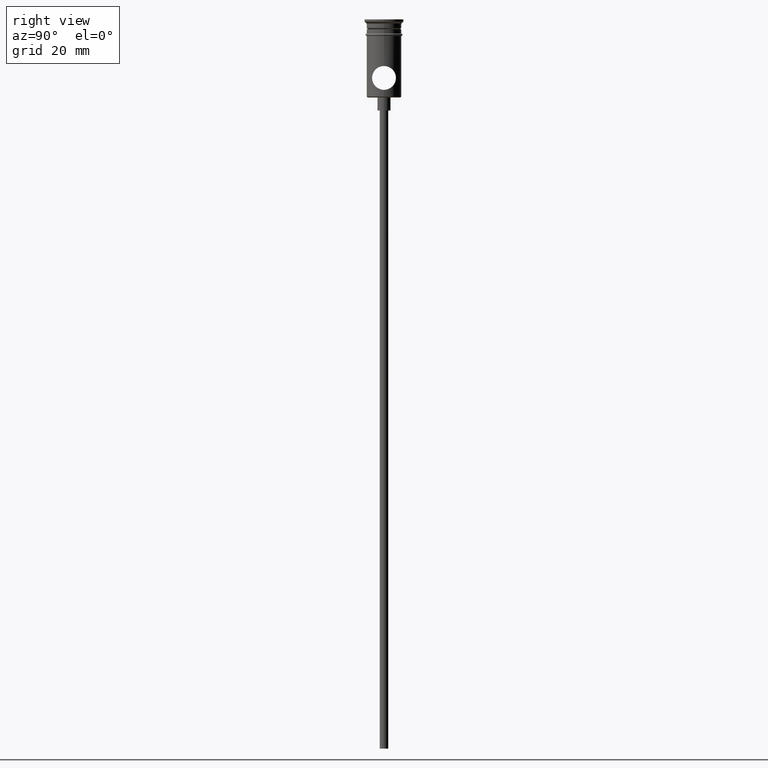
[diagram: clean part render]
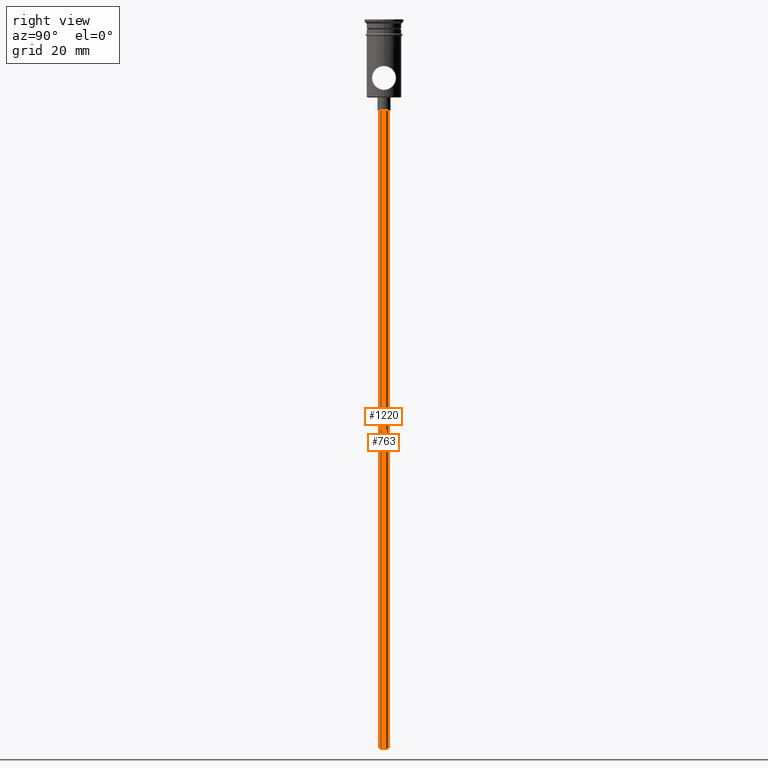
[diagram: same view with one multi-face feature highlighted, each face labeled with its STEP entity id]
A machine part, right view. The highlighted faces form ONE feature: a constant-radius fillet chain: 2 tangent blend faces with common blend radius 1 mm. The faces share edges in the B-rep.
Their STEP definitions:
[1] entity #763 (Cylinder):
#11 = EDGE_CURVE ( 'NONE', #895, #273, #929, .T. ) ;
#19 = LINE ( 'NONE', #1119, #1204 ) ;
#30 = ORIENTED_EDGE ( 'NONE', *, *, #423, .F. ) ;
#73 = CARTESIAN_POINT ( 'NONE',  ( -0.9999999999999997780, 1.224646799147352961E-16, -20.99999999999999645 ) ) ;
#99 = CARTESIAN_POINT ( 'NONE',  ( 0.000000000000000000, 0.000000000000000000, -20.99999999999999645 ) ) ;
#152 = AXIS2_PLACEMENT_3D ( 'NONE', #1319, #1228, #353 ) ;
#178 = VECTOR ( 'NONE', #285, 1000.000000000000000 ) ;
#209 = CARTESIAN_POINT ( 'NONE',  ( 0.9999999999999997780, 0.000000000000000000, -20.99999999999999645 ) ) ;
#216 = DIRECTION ( 'NONE',  ( 0.000000000000000000, 0.000000000000000000, -1.000000000000000000 ) ) ;
#236 = DIRECTION ( 'NONE',  ( -1.000000000000000000, 0.000000000000000000, 0.000000000000000000 ) ) ;
#239 = FACE_OUTER_BOUND ( 'NONE', #861, .T. ) ;
#248 = DIRECTION ( 'NONE',  ( -0.000000000000000000, -0.000000000000000000, 1.000000000000000000 ) ) ;
#255 = VERTEX_POINT ( 'NONE', #209 ) ;
#273 = VERTEX_POINT ( 'NONE', #641 ) ;
#285 = DIRECTION ( 'NONE',  ( -0.000000000000000000, -0.000000000000000000, 1.000000000000000000 ) ) ;
#292 = CARTESIAN_POINT ( 'NONE',  ( -0.9999999999999997780, 1.224646799147352961E-16, -167.9999999999999716 ) ) ;
#353 = DIRECTION ( 'NONE',  ( 1.000000000000000000, 0.000000000000000000, 0.000000000000000000 ) ) ;
#406 = LINE ( 'NONE', #292, #178 ) ;
#423 = EDGE_CURVE ( 'NONE', #273, #255, #19, .T. ) ;
#584 = DIRECTION ( 'NONE',  ( 0.000000000000000000, 0.000000000000000000, -1.000000000000000000 ) ) ;
#641 = CARTESIAN_POINT ( 'NONE',  ( 0.9999999999999997780, 0.000000000000000000, -167.9999999999999716 ) ) ;
#670 = CARTESIAN_POINT ( 'NONE',  ( 0.000000000000000000, 0.000000000000000000, -167.9999999999999716 ) ) ;
#698 = AXIS2_PLACEMENT_3D ( 'NONE', #670, #584, #236 ) ;
#713 = VERTEX_POINT ( 'NONE', #73 ) ;
#721 = ORIENTED_EDGE ( 'NONE', *, *, #1328, .T. ) ;
#743 = CARTESIAN_POINT ( 'NONE',  ( -0.9999999999999997780, 1.224646799147352961E-16, -167.9999999999999716 ) ) ;
#760 = CYLINDRICAL_SURFACE ( 'NONE', #152, 0.9999999999999997780 ) ;
#763 = ADVANCED_FACE ( 'NONE', ( #239 ), #760, .T. ) ;
#861 = EDGE_LOOP ( 'NONE', ( #918, #721, #883, #30 ) ) ;
#883 = ORIENTED_EDGE ( 'NONE', *, *, #1386, .T. ) ;
#895 = VERTEX_POINT ( 'NONE', #743 ) ;
#918 = ORIENTED_EDGE ( 'NONE', *, *, #11, .F. ) ;
#929 = CIRCLE ( 'NONE', #698, 0.9999999999999997780 ) ;
#1119 = CARTESIAN_POINT ( 'NONE',  ( 0.9999999999999997780, 0.000000000000000000, -167.9999999999999716 ) ) ;
#1204 = VECTOR ( 'NONE', #248, 1000.000000000000000 ) ;
#1228 = DIRECTION ( 'NONE',  ( -0.000000000000000000, -0.000000000000000000, 1.000000000000000000 ) ) ;
#1319 = CARTESIAN_POINT ( 'NONE',  ( 0.000000000000000000, 0.000000000000000000, -167.9999999999999716 ) ) ;
#1325 = CIRCLE ( 'NONE', #1417, 0.9999999999999997780 ) ;
#1328 = EDGE_CURVE ( 'NONE', #895, #713, #406, .T. ) ;
#1386 = EDGE_CURVE ( 'NONE', #713, #255, #1325, .T. ) ;
#1404 = DIRECTION ( 'NONE',  ( -1.000000000000000000, 0.000000000000000000, 0.000000000000000000 ) ) ;
#1417 = AXIS2_PLACEMENT_3D ( 'NONE', #99, #216, #1404 ) ;
[2] entity #1220 (Cylinder):
#19 = LINE ( 'NONE', #1119, #1204 ) ;
#73 = CARTESIAN_POINT ( 'NONE',  ( -0.9999999999999997780, 1.224646799147352961E-16, -20.99999999999999645 ) ) ;
#148 = ORIENTED_EDGE ( 'NONE', *, *, #1328, .F. ) ;
#178 = VECTOR ( 'NONE', #285, 1000.000000000000000 ) ;
#209 = CARTESIAN_POINT ( 'NONE',  ( 0.9999999999999997780, 0.000000000000000000, -20.99999999999999645 ) ) ;
#243 = DIRECTION ( 'NONE',  ( -0.000000000000000000, -0.000000000000000000, 1.000000000000000000 ) ) ;
#248 = DIRECTION ( 'NONE',  ( -0.000000000000000000, -0.000000000000000000, 1.000000000000000000 ) ) ;
#255 = VERTEX_POINT ( 'NONE', #209 ) ;
#264 = EDGE_CURVE ( 'NONE', #273, #895, #474, .T. ) ;
#273 = VERTEX_POINT ( 'NONE', #641 ) ;
#285 = DIRECTION ( 'NONE',  ( -0.000000000000000000, -0.000000000000000000, 1.000000000000000000 ) ) ;
#292 = CARTESIAN_POINT ( 'NONE',  ( -0.9999999999999997780, 1.224646799147352961E-16, -167.9999999999999716 ) ) ;
#321 = DIRECTION ( 'NONE',  ( -1.000000000000000000, 0.000000000000000000, 0.000000000000000000 ) ) ;
#357 = CYLINDRICAL_SURFACE ( 'NONE', #1048, 0.9999999999999997780 ) ;
#406 = LINE ( 'NONE', #292, #178 ) ;
#421 = DIRECTION ( 'NONE',  ( 0.000000000000000000, 0.000000000000000000, -1.000000000000000000 ) ) ;
#423 = EDGE_CURVE ( 'NONE', #273, #255, #19, .T. ) ;
#474 = CIRCLE ( 'NONE', #1111, 0.9999999999999997780 ) ;
#479 = CIRCLE ( 'NONE', #658, 0.9999999999999997780 ) ;
#599 = DIRECTION ( 'NONE',  ( 1.000000000000000000, 0.000000000000000000, 0.000000000000000000 ) ) ;
#641 = CARTESIAN_POINT ( 'NONE',  ( 0.9999999999999997780, 0.000000000000000000, -167.9999999999999716 ) ) ;
#658 = AXIS2_PLACEMENT_3D ( 'NONE', #1022, #1014, #1334 ) ;
#713 = VERTEX_POINT ( 'NONE', #73 ) ;
#743 = CARTESIAN_POINT ( 'NONE',  ( -0.9999999999999997780, 1.224646799147352961E-16, -167.9999999999999716 ) ) ;
#895 = VERTEX_POINT ( 'NONE', #743 ) ;
#955 = CARTESIAN_POINT ( 'NONE',  ( 0.000000000000000000, 0.000000000000000000, -167.9999999999999716 ) ) ;
#1014 = DIRECTION ( 'NONE',  ( 0.000000000000000000, 0.000000000000000000, -1.000000000000000000 ) ) ;
#1022 = CARTESIAN_POINT ( 'NONE',  ( 0.000000000000000000, 0.000000000000000000, -20.99999999999999645 ) ) ;
#1048 = AXIS2_PLACEMENT_3D ( 'NONE', #1136, #243, #599 ) ;
#1111 = AXIS2_PLACEMENT_3D ( 'NONE', #955, #421, #321 ) ;
#1119 = CARTESIAN_POINT ( 'NONE',  ( 0.9999999999999997780, 0.000000000000000000, -167.9999999999999716 ) ) ;
#1136 = CARTESIAN_POINT ( 'NONE',  ( 0.000000000000000000, 0.000000000000000000, -167.9999999999999716 ) ) ;
#1196 = ORIENTED_EDGE ( 'NONE', *, *, #423, .T. ) ;
#1204 = VECTOR ( 'NONE', #248, 1000.000000000000000 ) ;
#1220 = ADVANCED_FACE ( 'NONE', ( #1246 ), #357, .T. ) ;
#1246 = FACE_OUTER_BOUND ( 'NONE', #1316, .T. ) ;
#1272 = EDGE_CURVE ( 'NONE', #255, #713, #479, .T. ) ;
#1294 = ORIENTED_EDGE ( 'NONE', *, *, #264, .F. ) ;
#1300 = ORIENTED_EDGE ( 'NONE', *, *, #1272, .T. ) ;
#1316 = EDGE_LOOP ( 'NONE', ( #148, #1294, #1196, #1300 ) ) ;
#1328 = EDGE_CURVE ( 'NONE', #895, #713, #406, .T. ) ;
#1334 = DIRECTION ( 'NONE',  ( -1.000000000000000000, 0.000000000000000000, 0.000000000000000000 ) ) ;